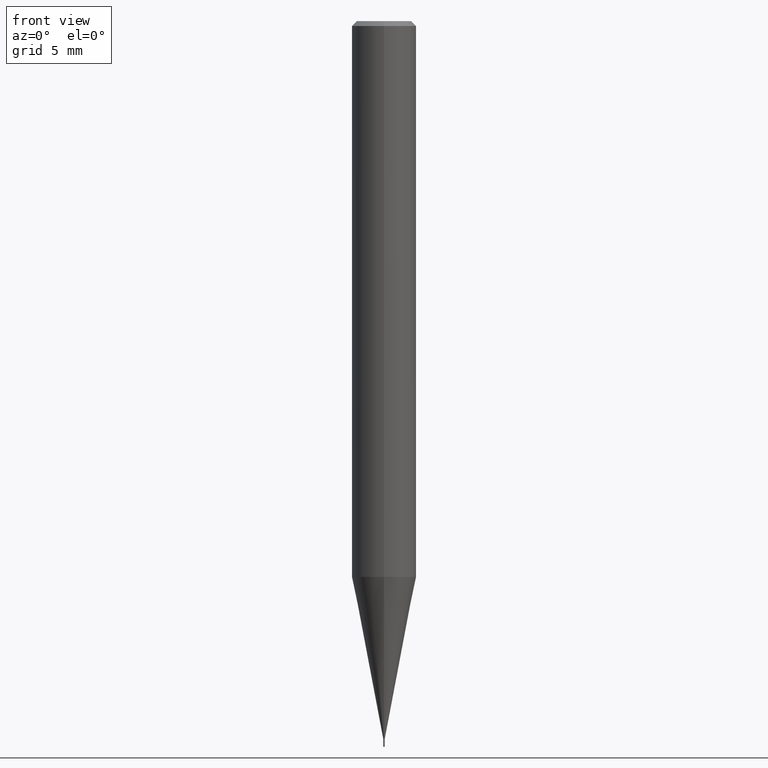
[diagram: clean part render]
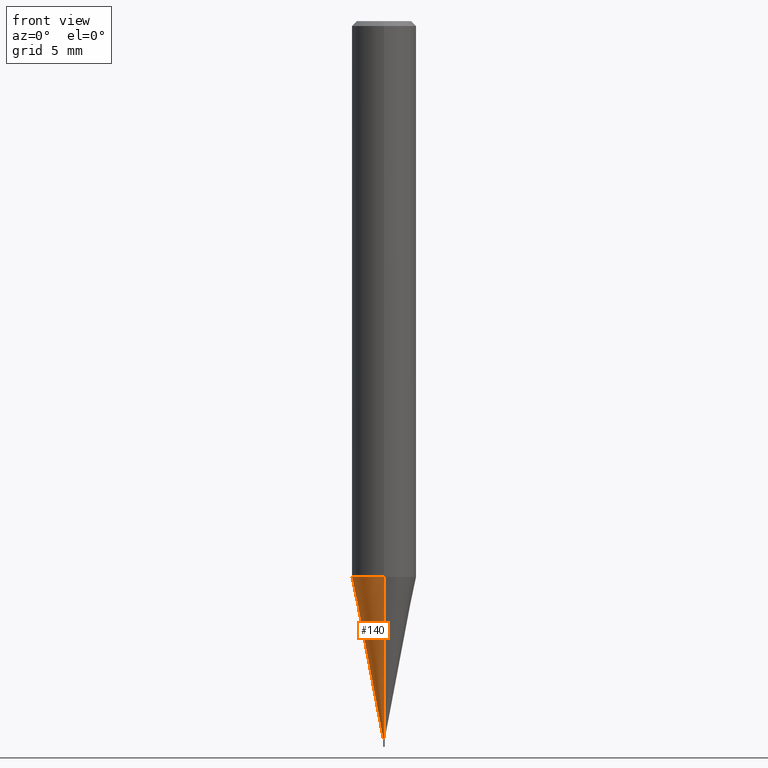
[diagram: same view with one face highlighted and labeled with its STEP entity id]
A machine part, front view. The second image highlights one B-rep face of the part: STEP entity #140.
In plain terms, the highlighted conical surface has half-angle 11 deg.
Its self-contained STEP definition (entity closure, byte-faithful):
#108=EDGE_CURVE('',#196,#122,#252,.T.);
#122=VERTEX_POINT('',#269);
#132=VERTEX_POINT('',#282);
#140=ADVANCED_FACE('',(#291),#292,.T.);
#166=EDGE_CURVE('',#122,#182,#322,.T.);
#168=EDGE_CURVE('',#182,#132,#324,.T.);
#182=VERTEX_POINT('',#338);
#196=VERTEX_POINT('',#352);
#200=EDGE_CURVE('',#196,#132,#356,.T.);
#252=LINE('',#408,#409);
#269=CARTESIAN_POINT('',(2.44915147732706E-016,-1.99995,-34.455));
#282=CARTESIAN_POINT('',(0.0,0.04745,-44.5));
#291=FACE_OUTER_BOUND('',#453,.T.);
#292=CONICAL_SURFACE('',#454,1.0237,0.191981401646118);
#322=CIRCLE('',#491,1.99995);
#324=LINE('',#494,#495);
#338=CARTESIAN_POINT('',(0.0,1.99995,-34.455));
#352=CARTESIAN_POINT('',(5.81075714888718E-018,-0.04745,-44.5));
#356=CIRCLE('',#537,0.04745);
#408=CARTESIAN_POINT('',(1.25362952440797E-016,-1.0237,-39.4775));
#409=VECTOR('',#588,1.0);
#453=EDGE_LOOP('',(#657,#658,#659,#660));
#454=AXIS2_PLACEMENT_3D('',#661,#662,#663);
#491=AXIS2_PLACEMENT_3D('',#696,#697,#698);
#494=CARTESIAN_POINT('',(-1.25362952440797E-016,1.0237,-39.4775));
#495=VECTOR('',#699,1.0);
#537=AXIS2_PLACEMENT_3D('',#712,#713,#714);
#588=DIRECTION('',(2.33660118667044E-017,-0.190804267785904,0.98162810238638));
#657=ORIENTED_EDGE('',*,*,#168,.T.);
#658=ORIENTED_EDGE('',*,*,#200,.F.);
#659=ORIENTED_EDGE('',*,*,#108,.T.);
#660=ORIENTED_EDGE('',*,*,#166,.T.);
#661=CARTESIAN_POINT('',(0.0,0.0,-39.4775));
#662=DIRECTION('',(-0.0,-0.0,1.0));
#663=DIRECTION('',(0.0,1.0,0.0));
#696=CARTESIAN_POINT('',(0.0,0.0,-34.455));
#697=DIRECTION('',(0.0,0.0,-1.0));
#698=DIRECTION('',(0.0,1.0,0.0));
#699=DIRECTION('',(2.33660118667044E-017,-0.190804267785904,-0.98162810238638));
#712=CARTESIAN_POINT('',(0.0,0.0,-44.5));
#713=DIRECTION('',(0.0,0.0,-1.0));
#714=DIRECTION('',(0.0,1.0,0.0));